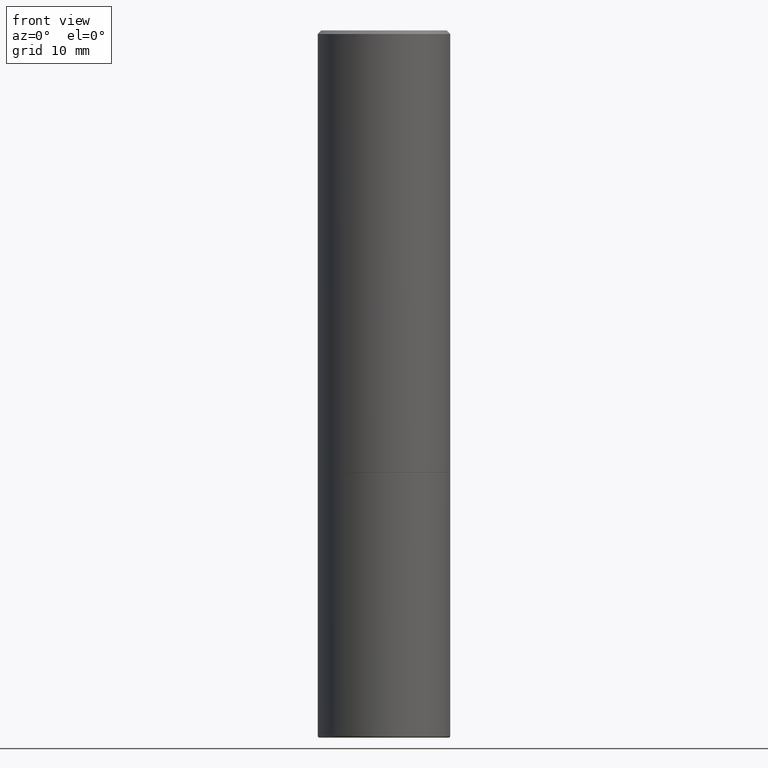
[diagram: clean part render]
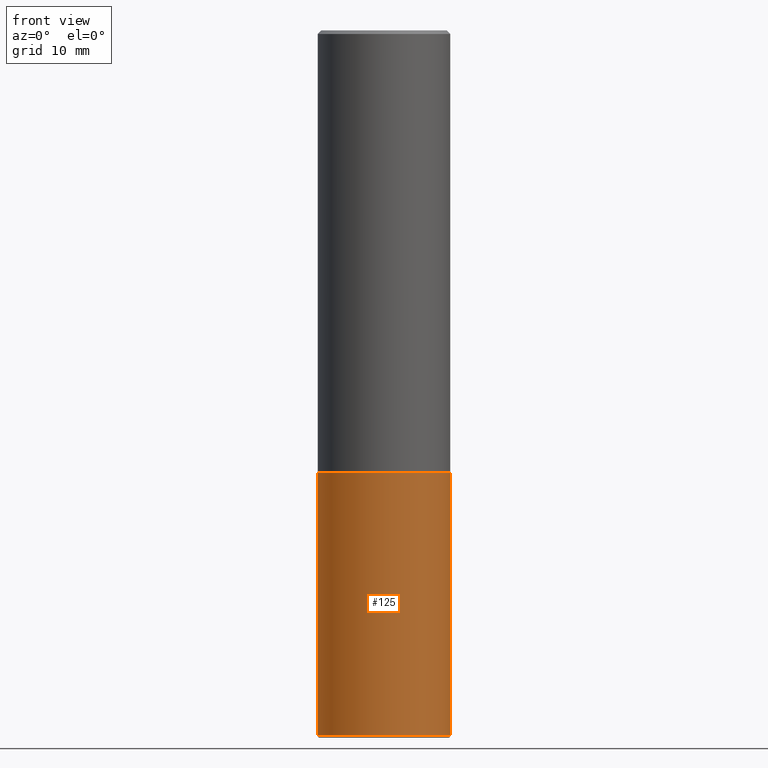
[diagram: same view with one face highlighted and labeled with its STEP entity id]
A machine part, front view. The second image highlights one B-rep face of the part: STEP entity #125.
In plain terms, the highlighted cylindrical surface (partial cylindrical patch) has radius 9.525 mm, axis along (-0, 0, 1).
Its self-contained STEP definition (entity closure, byte-faithful):
#10 = CARTESIAN_POINT ( 'NONE',  ( 0.3750000000000000555, -1.134731435124021338E-14, -2.500000000000000000 ) ) ;
#15 = VECTOR ( 'NONE', #373, 39.37007874015748143 ) ;
#32 = LINE ( 'NONE', #33, #15 ) ;
#33 = CARTESIAN_POINT ( 'NONE',  ( -0.3749999999999999445, 2.664535259100375303E-15, -1.844600658845589318E-29 ) ) ;
#55 = CARTESIAN_POINT ( 'NONE',  ( -0.3749999999999999445, -1.126647528288377341E-14, -3.989999999999999769 ) ) ;
#56 = EDGE_CURVE ( 'NONE', #238, #88, #204, .T. ) ;
#72 = AXIS2_PLACEMENT_3D ( 'NONE', #281, #115, #181 ) ;
#88 = VERTEX_POINT ( 'NONE', #10 ) ;
#106 = CARTESIAN_POINT ( 'NONE',  ( 0.000000000000000000, 0.000000000000000000, 0.000000000000000000 ) ) ;
#115 = DIRECTION ( 'NONE',  ( -2.445468806185136597E-29, 3.491481338843145583E-15, 1.000000000000000000 ) ) ;
#118 = EDGE_LOOP ( 'NONE', ( #291, #237, #334, #121 ) ) ;
#121 = ORIENTED_EDGE ( 'NONE', *, *, #56, .F. ) ;
#124 = AXIS2_PLACEMENT_3D ( 'NONE', #106, #354, #282 ) ;
#125 = ADVANCED_FACE ( 'NONE', ( #168 ), #353, .T. ) ;
#143 = CARTESIAN_POINT ( 'NONE',  ( 0.3749999999999999445, -1.654962154611649754E-14, -3.989999999999999769 ) ) ;
#168 = FACE_OUTER_BOUND ( 'NONE', #118, .T. ) ;
#178 = VERTEX_POINT ( 'NONE', #143 ) ;
#181 = DIRECTION ( 'NONE',  ( 1.000000000000000000, -6.982962677686264344E-15, 0.000000000000000000 ) ) ;
#194 = DIRECTION ( 'NONE',  ( -2.445468806185136597E-29, 3.491481338843145583E-15, 1.000000000000000000 ) ) ;
#196 = EDGE_CURVE ( 'NONE', #273, #178, #226, .T. ) ;
#204 = CIRCLE ( 'NONE', #72, 0.3750000000000000555 ) ;
#218 = AXIS2_PLACEMENT_3D ( 'NONE', #345, #194, #311 ) ;
#224 = EDGE_CURVE ( 'NONE', #178, #88, #276, .T. ) ;
#226 = CIRCLE ( 'NONE', #218, 0.3749999999999999445 ) ;
#230 = EDGE_CURVE ( 'NONE', #273, #238, #32, .T. ) ;
#237 = ORIENTED_EDGE ( 'NONE', *, *, #196, .T. ) ;
#238 = VERTEX_POINT ( 'NONE', #312 ) ;
#273 = VERTEX_POINT ( 'NONE', #55 ) ;
#276 = LINE ( 'NONE', #377, #333 ) ;
#281 = CARTESIAN_POINT ( 'NONE',  ( 6.113672015462842613E-29, -8.728703347107864943E-15, -2.500000000000000000 ) ) ;
#282 = DIRECTION ( 'NONE',  ( 1.000000000000000000, -6.982962677686266711E-15, 4.876176775795935793E-29 ) ) ;
#291 = ORIENTED_EDGE ( 'NONE', *, *, #230, .F. ) ;
#311 = DIRECTION ( 'NONE',  ( 1.000000000000000000, -6.982962677686263555E-15, 0.000000000000000000 ) ) ;
#312 = CARTESIAN_POINT ( 'NONE',  ( -0.3750000000000000555, -8.665321685445630537E-15, -2.500000000000000000 ) ) ;
#333 = VECTOR ( 'NONE', #344, 39.37007874015748143 ) ;
#334 = ORIENTED_EDGE ( 'NONE', *, *, #224, .T. ) ;
#344 = DIRECTION ( 'NONE',  ( -2.445468806185136877E-29, 3.491481338843145188E-15, 1.000000000000000000 ) ) ;
#345 = CARTESIAN_POINT ( 'NONE',  ( 9.757420536678694842E-29, -1.393101054198414910E-14, -3.989999999999999769 ) ) ;
#353 = CYLINDRICAL_SURFACE ( 'NONE', #124, 0.3749999999999999445 ) ;
#354 = DIRECTION ( 'NONE',  ( -2.445468806185136597E-29, 3.491481338843145583E-15, 1.000000000000000000 ) ) ;
#373 = DIRECTION ( 'NONE',  ( -2.445468806185136877E-29, 3.491481338843145188E-15, 1.000000000000000000 ) ) ;
#377 = CARTESIAN_POINT ( 'NONE',  ( 0.3749999999999999445, -2.618611004132349622E-15, 1.828566290923475642E-29 ) ) ;